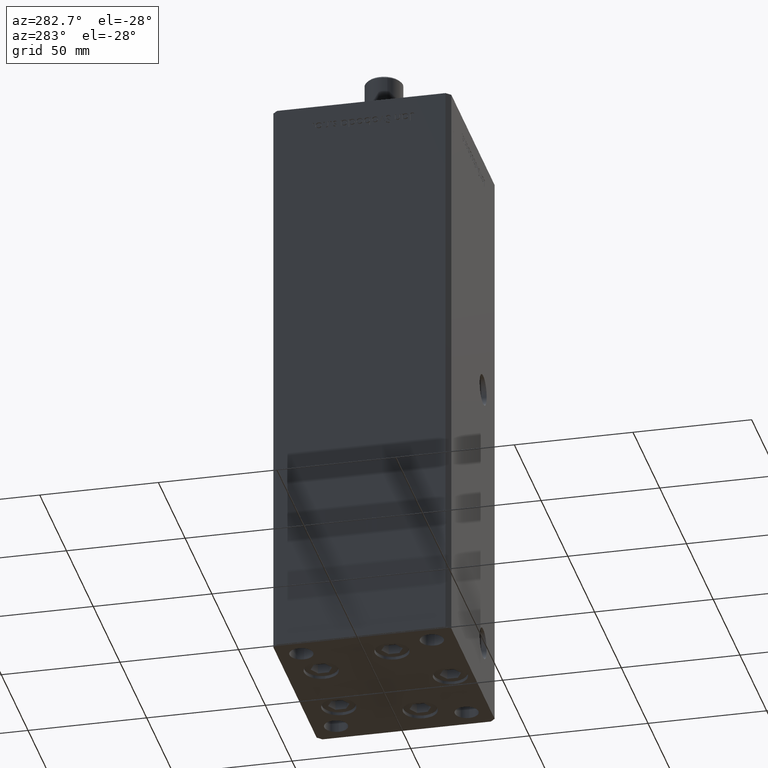
[diagram: clean part render]
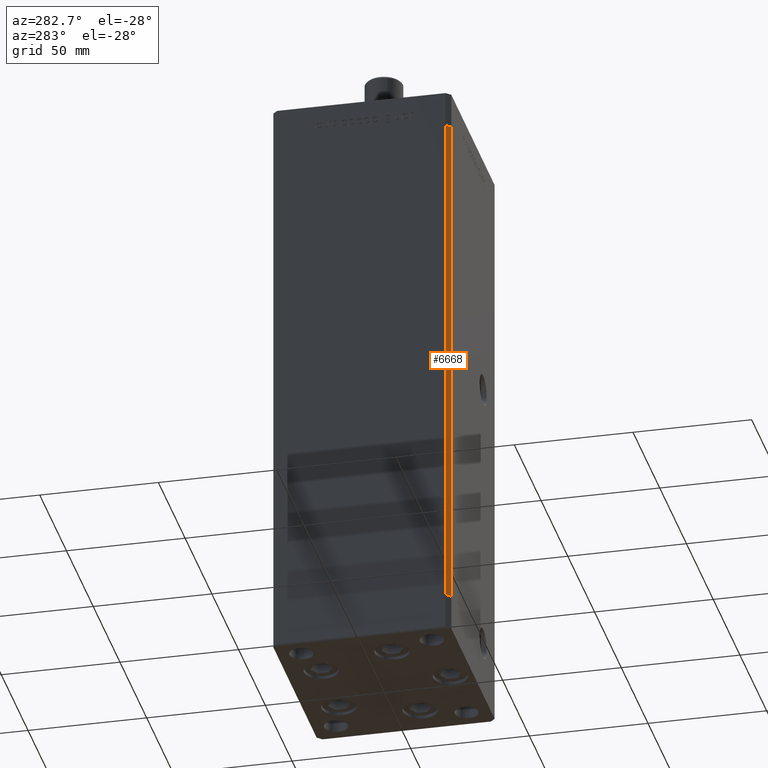
[diagram: same view with one face highlighted and labeled with its STEP entity id]
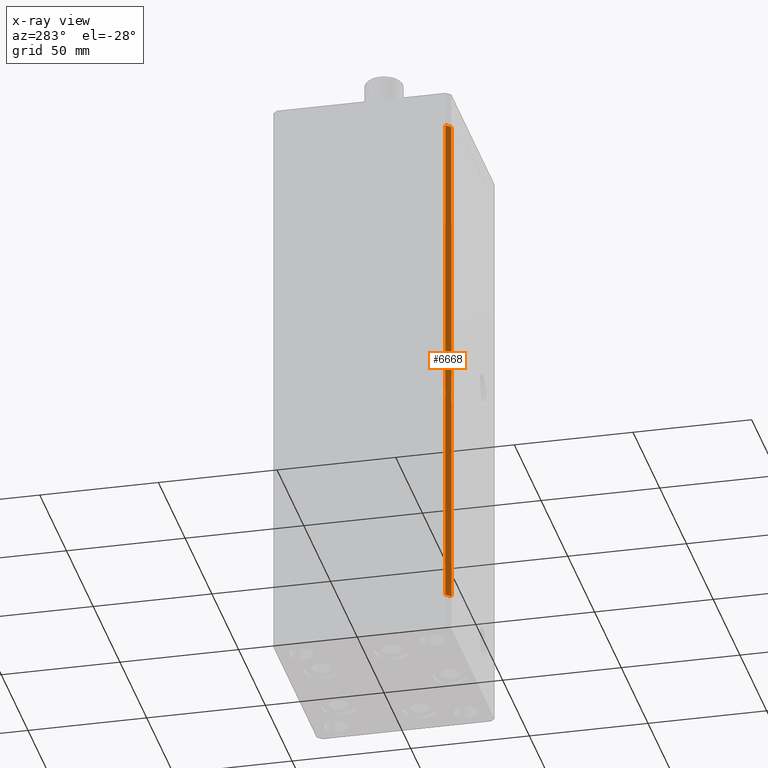
[diagram: x-ray of the same camera — body ghosted, the highlighted face saturated]
A machine part, auxiliary view. The second image highlights one B-rep face of the part: STEP entity #6668.
The next image is the same camera in x-ray: the body ghosted, the highlighted face saturated — about 0% of this face is hidden behind the body in this view.
In plain terms, the highlighted planar face has unit normal (0.7071, 0.7071, 0).
Its self-contained STEP definition (entity closure, byte-faithful):
#384 = ORIENTED_EDGE ( 'NONE', *, *, #36485, .T. ) ;
#4265 = AXIS2_PLACEMENT_3D ( 'NONE', #44224, #40511, #32557 ) ;
#6004 = VERTEX_POINT ( 'NONE', #35600 ) ;
#6290 = VECTOR ( 'NONE', #21531, 1000.000000000000000 ) ;
#6668 = ADVANCED_FACE ( 'NONE', ( #48739 ), #7919, .F. ) ;
#7050 = ORIENTED_EDGE ( 'NONE', *, *, #8624, .T. ) ;
#7324 = VERTEX_POINT ( 'NONE', #49072 ) ;
#7919 = PLANE ( 'NONE',  #4265 ) ;
#8014 = LINE ( 'NONE', #8556, #11908 ) ;
#8556 = CARTESIAN_POINT ( 'NONE',  ( -42.49999999999998579, -35.50000000000000711, 0.000000000000000000 ) ) ;
#8624 = EDGE_CURVE ( 'NONE', #50730, #42414, #8014, .T. ) ;
#9748 = ORIENTED_EDGE ( 'NONE', *, *, #30065, .F. ) ;
#11323 = CARTESIAN_POINT ( 'NONE',  ( -40.49999999999998579, -37.50000000000000711, 0.000000000000000000 ) ) ;
#11908 = VECTOR ( 'NONE', #31845, 1000.000000000000114 ) ;
#14945 = DIRECTION ( 'NONE',  ( -0.000000000000000000, -0.000000000000000000, -1.000000000000000000 ) ) ;
#16771 = CARTESIAN_POINT ( 'NONE',  ( -40.49999999999998579, -37.50000000000000711, 218.5000000000000000 ) ) ;
#19176 = LINE ( 'NONE', #39053, #46271 ) ;
#19347 = LINE ( 'NONE', #51443, #37625 ) ;
#21531 = DIRECTION ( 'NONE',  ( -0.000000000000000000, -0.000000000000000000, -1.000000000000000000 ) ) ;
#23902 = EDGE_CURVE ( 'NONE', #6004, #42414, #32927, .T. ) ;
#24283 = ORIENTED_EDGE ( 'NONE', *, *, #23902, .F. ) ;
#30065 = EDGE_CURVE ( 'NONE', #7324, #6004, #19347, .T. ) ;
#30828 = CARTESIAN_POINT ( 'NONE',  ( -42.49999999999998579, -35.50000000000000711, 0.000000000000000000 ) ) ;
#31778 = DIRECTION ( 'NONE',  ( 0.7071067811865474617, -0.7071067811865474617, 0.000000000000000000 ) ) ;
#31845 = DIRECTION ( 'NONE',  ( 0.7071067811865474617, -0.7071067811865474617, 0.000000000000000000 ) ) ;
#32557 = DIRECTION ( 'NONE',  ( -0.7071067811865474617, 0.7071067811865474617, 0.000000000000000000 ) ) ;
#32927 = LINE ( 'NONE', #16771, #6290 ) ;
#35600 = CARTESIAN_POINT ( 'NONE',  ( -40.49999999999998579, -37.50000000000000711, 218.5000000000000000 ) ) ;
#36485 = EDGE_CURVE ( 'NONE', #7324, #50730, #19176, .T. ) ;
#37625 = VECTOR ( 'NONE', #31778, 1000.000000000000114 ) ;
#39053 = CARTESIAN_POINT ( 'NONE',  ( -42.49999999999998579, -35.50000000000000711, 218.5000000000000000 ) ) ;
#40511 = DIRECTION ( 'NONE',  ( 0.7071067811865475727, 0.7071067811865475727, -0.000000000000000000 ) ) ;
#42414 = VERTEX_POINT ( 'NONE', #11323 ) ;
#43559 = EDGE_LOOP ( 'NONE', ( #7050, #24283, #9748, #384 ) ) ;
#44224 = CARTESIAN_POINT ( 'NONE',  ( -42.49999999999998579, -35.50000000000000711, 218.5000000000000000 ) ) ;
#46271 = VECTOR ( 'NONE', #14945, 1000.000000000000000 ) ;
#48739 = FACE_OUTER_BOUND ( 'NONE', #43559, .T. ) ;
#49072 = CARTESIAN_POINT ( 'NONE',  ( -42.49999999999998579, -35.50000000000000711, 218.5000000000000000 ) ) ;
#50730 = VERTEX_POINT ( 'NONE', #30828 ) ;
#51443 = CARTESIAN_POINT ( 'NONE',  ( -42.49999999999998579, -35.50000000000000711, 218.5000000000000000 ) ) ;